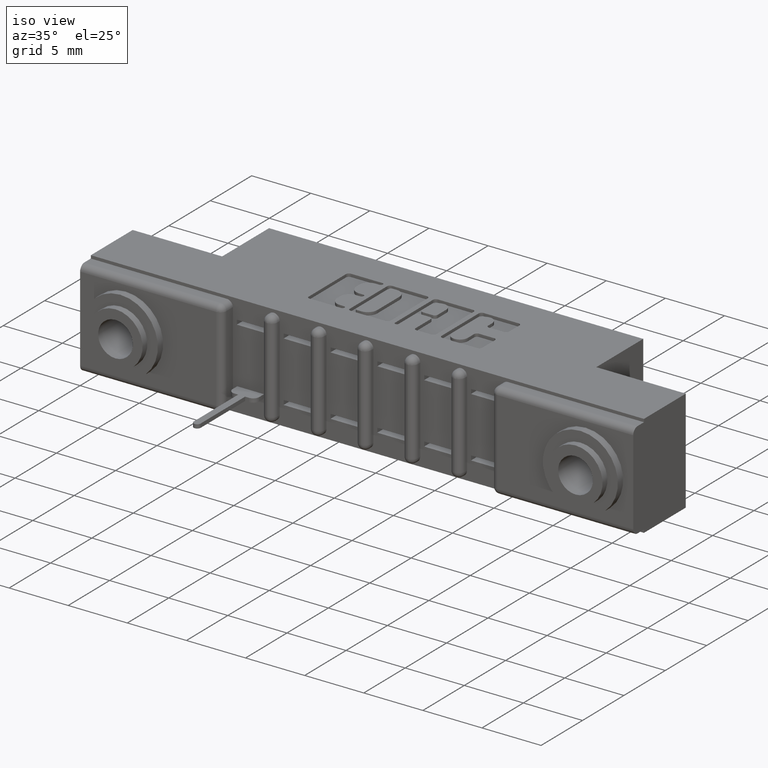
[diagram: clean part render]
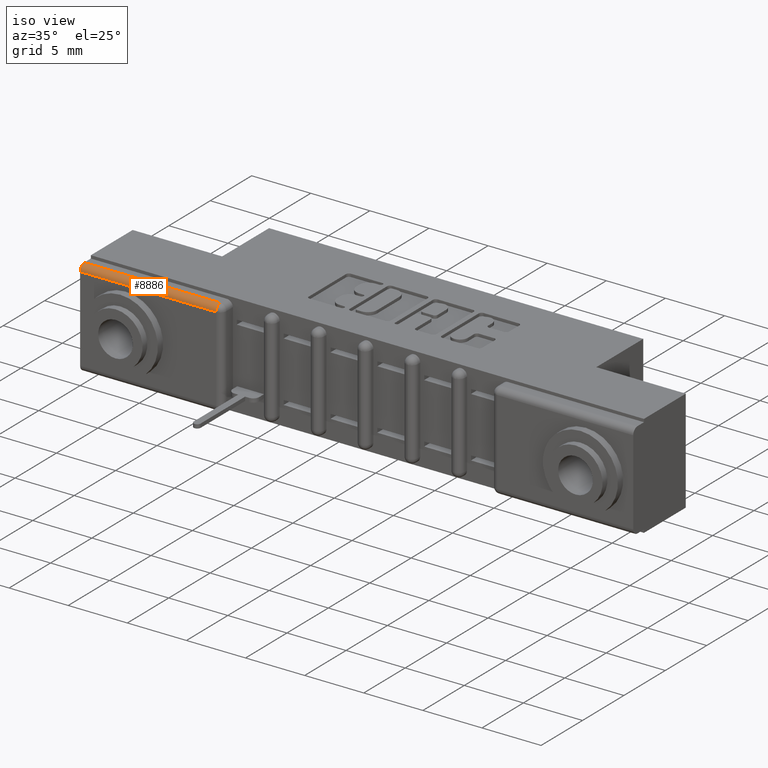
[diagram: same view with one face highlighted and labeled with its STEP entity id]
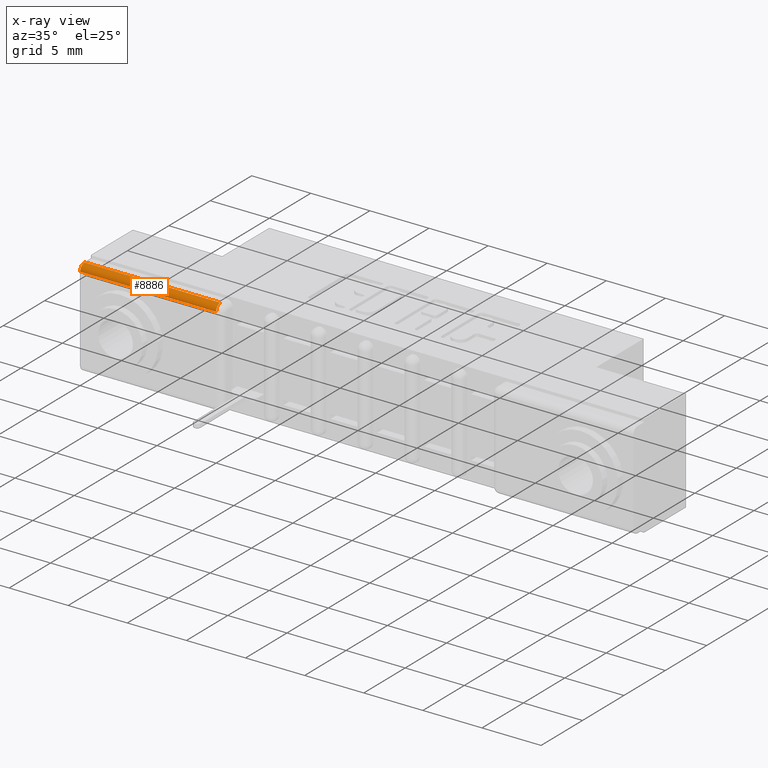
[diagram: x-ray of the same camera — body ghosted, the highlighted face saturated]
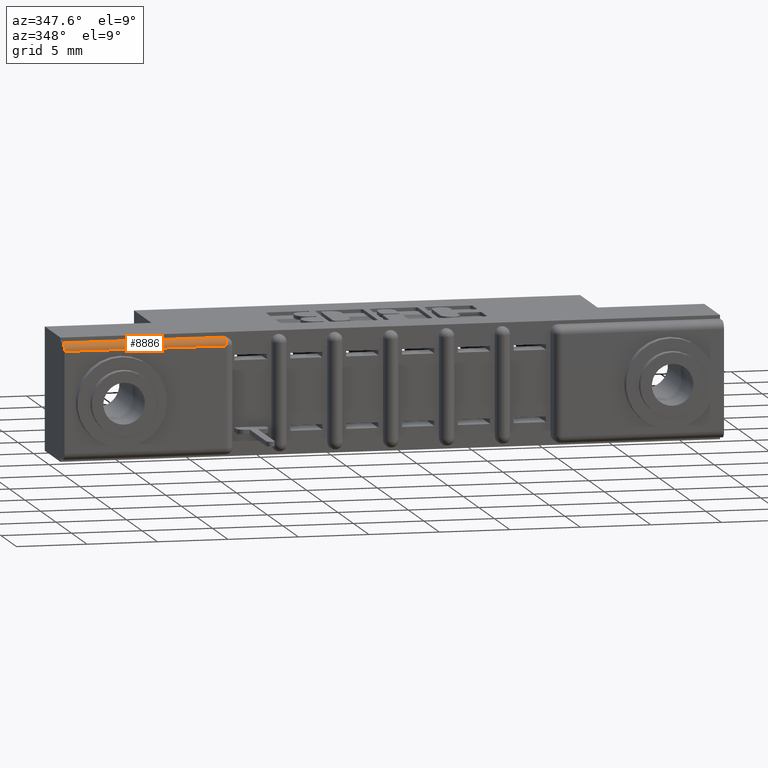
[diagram: same view with one face highlighted and labeled with its STEP entity id]
A machine part, iso view. The second image highlights one B-rep face of the part: STEP entity #8886.
The next image is the same camera in x-ray: the body ghosted, the highlighted face saturated — about 0% of this face is hidden behind the body in this view.
A second angle (auxiliary view) of the same face is appended — the face is thin or edge-on in the first view.
In plain terms, the highlighted cylindrical surface (edge-blend (fillet) strip) has radius 0.508 mm, axis along (-1, 0, 0).
Its self-contained STEP definition (entity closure, byte-faithful):
#48 = DIRECTION ( 'NONE',  ( 1.000000000000000000, 0.0000000000000000000, 0.0000000000000000000 ) ) ;
#164 = EDGE_CURVE ( 'NONE', #2263, #5054, #7401, .T. ) ;
#498 = AXIS2_PLACEMENT_3D ( 'NONE', #6927, #2028, #7707 ) ;
#691 = ORIENTED_EDGE ( 'NONE', *, *, #164, .F. ) ;
#693 = DIRECTION ( 'NONE',  ( -1.000000000000000000, 0.0000000000000000000, 0.0000000000000000000 ) ) ;
#786 = ORIENTED_EDGE ( 'NONE', *, *, #3383, .F. ) ;
#838 = CARTESIAN_POINT ( 'NONE',  ( 1.224646799147377100E-018, 0.02000000000000000000, -0.01000000000000020100 ) ) ;
#1171 = DIRECTION ( 'NONE',  ( -1.000000000000000000, 0.0000000000000000000, 0.0000000000000000000 ) ) ;
#1505 = VECTOR ( 'NONE', #48, 39.37007874015748100 ) ;
#1583 = VERTEX_POINT ( 'NONE', #4353 ) ;
#2028 = DIRECTION ( 'NONE',  ( -1.000000000000000000, 0.0000000000000000000, -0.0000000000000000000 ) ) ;
#2110 = ORIENTED_EDGE ( 'NONE', *, *, #8587, .T. ) ;
#2124 = EDGE_LOOP ( 'NONE', ( #691, #786, #2110, #3278 ) ) ;
#2263 = VERTEX_POINT ( 'NONE', #8438 ) ;
#2508 = CIRCLE ( 'NONE', #8962, 0.02000000000000000000 ) ;
#2714 = CARTESIAN_POINT ( 'NONE',  ( 0.4530000000000003500, 0.02000000000000000000, -0.01000000000000020100 ) ) ;
#3278 = ORIENTED_EDGE ( 'NONE', *, *, #6824, .F. ) ;
#3383 = EDGE_CURVE ( 'NONE', #1583, #2263, #8696, .T. ) ;
#4353 = CARTESIAN_POINT ( 'NONE',  ( 0.4529999999999999000, 0.0000000000000000000, -0.03000000000000021100 ) ) ;
#4849 = CARTESIAN_POINT ( 'NONE',  ( 0.4530000000000003500, 0.02000000000000000000, -0.01000000000000020100 ) ) ;
#5054 = VERTEX_POINT ( 'NONE', #838 ) ;
#6070 = CARTESIAN_POINT ( 'NONE',  ( 0.4530000000000003500, 0.02000000000000000000, -0.03000000000000021100 ) ) ;
#6128 = LINE ( 'NONE', #4849, #1505 ) ;
#6405 = DIRECTION ( 'NONE',  ( 0.0000000000000000000, 0.0000000000000000000, 1.000000000000000000 ) ) ;
#6630 = VECTOR ( 'NONE', #6958, 39.37007874015748100 ) ;
#6824 = EDGE_CURVE ( 'NONE', #5054, #9182, #6128, .T. ) ;
#6886 = DIRECTION ( 'NONE',  ( 0.0000000000000000000, 0.0000000000000000000, 1.000000000000000000 ) ) ;
#6927 = CARTESIAN_POINT ( 'NONE',  ( 0.0000000000000000000, 0.02000000000000000000, -0.03000000000000020000 ) ) ;
#6958 = DIRECTION ( 'NONE',  ( -1.000000000000000000, -0.0000000000000000000, 0.0000000000000000000 ) ) ;
#7401 = CIRCLE ( 'NONE', #498, 0.02000000000000000000 ) ;
#7707 = DIRECTION ( 'NONE',  ( 0.0000000000000000000, 0.0000000000000000000, -1.000000000000000000 ) ) ;
#7746 = AXIS2_PLACEMENT_3D ( 'NONE', #8728, #693, #6405 ) ;
#7819 = FACE_OUTER_BOUND ( 'NONE', #2124, .T. ) ;
#8438 = CARTESIAN_POINT ( 'NONE',  ( 0.0000000000000000000, 0.0000000000000000000, -0.03000000000000020000 ) ) ;
#8515 = CARTESIAN_POINT ( 'NONE',  ( 1.224646799147377100E-018, 0.0000000000000000000, -0.03000000000000020000 ) ) ;
#8587 = EDGE_CURVE ( 'NONE', #1583, #9182, #2508, .T. ) ;
#8696 = LINE ( 'NONE', #8515, #6630 ) ;
#8728 = CARTESIAN_POINT ( 'NONE',  ( 0.0000000000000000000, 0.02000000000000000000, -0.03000000000000020000 ) ) ;
#8886 = ADVANCED_FACE ( 'NONE', ( #7819 ), #9687, .T. ) ;
#8962 = AXIS2_PLACEMENT_3D ( 'NONE', #6070, #1171, #6886 ) ;
#9182 = VERTEX_POINT ( 'NONE', #2714 ) ;
#9687 = CYLINDRICAL_SURFACE ( 'NONE', #7746, 0.02000000000000000000 ) ;